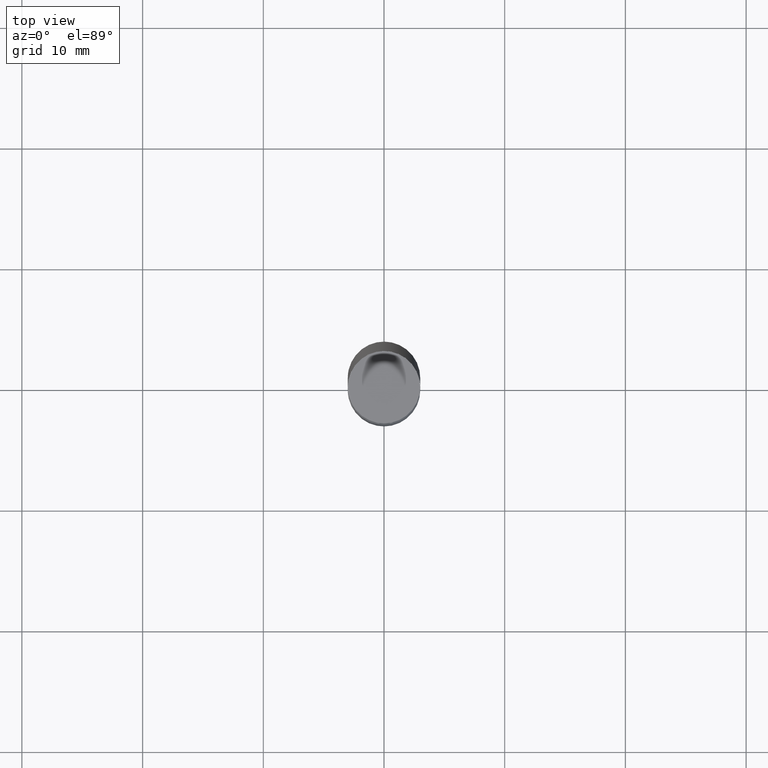
[diagram: clean part render]
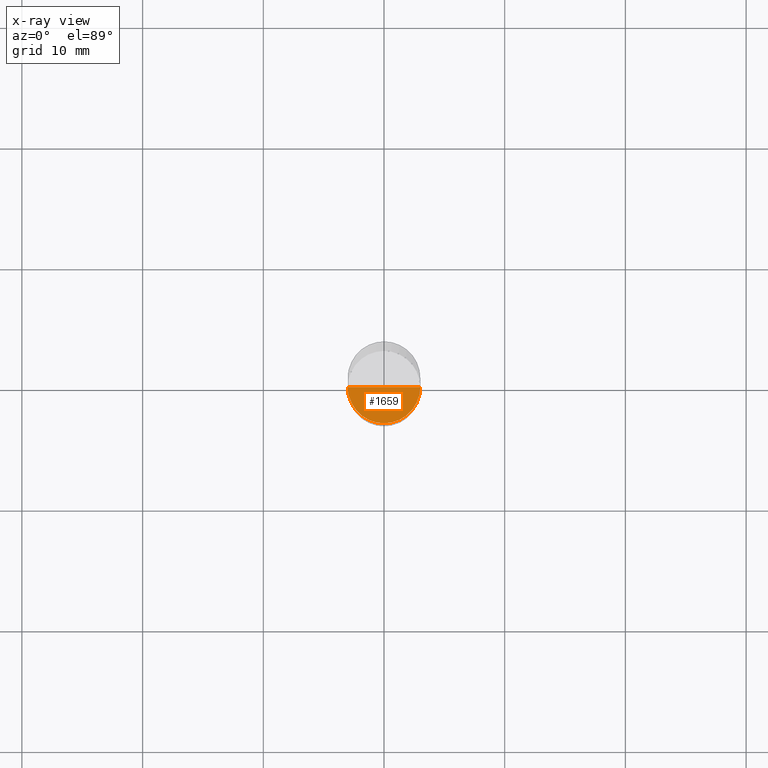
[diagram: x-ray — body ghosted, one internal face saturated and labeled with its STEP entity id]
A machine part, top view, then the same camera in x-ray: the body is ghosted and one INTERNAL B-rep face — a face not visible from any outside direction — is saturated and labeled: STEP entity #1659.
In plain terms, the highlighted face is a freeform B-spline surface patch.
Its self-contained STEP definition (entity closure, byte-faithful):
#1466=CARTESIAN_POINT('',(3.0,0.0,0.0));
#1470=CARTESIAN_POINT('',(-3.0,0.0,0.0));
#1471=CARTESIAN_POINT('',(0.0,0.0,0.0));
#1487=CARTESIAN_POINT('',(-3.0,-3.0,0.0));
#1488=CARTESIAN_POINT('',(0.0,-3.0,0.0));
#1489=CARTESIAN_POINT('',(3.0,-3.0,0.0));
#1644=(
BOUNDED_SURFACE()
B_SPLINE_SURFACE(1,2,(
(#1470,#1487,#1488,#1489,#1466),
(#1471,#1471,#1471,#1471,#1471)
), .UNSPECIFIED.,.F.,.F.,.F.)
B_SPLINE_SURFACE_WITH_KNOTS((2,2),(3,2,3),(
0.0,1.0),(
0.0,0.5,1.0), .UNSPECIFIED.)
GEOMETRIC_REPRESENTATION_ITEM()
RATIONAL_B_SPLINE_SURFACE(((1.0,0.707106781187,1.0,0.707106781187,1.0),
(1.0,0.707106781187,1.0,0.707106781187,1.0)
))
REPRESENTATION_ITEM('')
SURFACE()
);
#1645=(
BOUNDED_CURVE()
B_SPLINE_CURVE(1,(#1471,#1466),.UNSPECIFIED.,.F.,.F.)
B_SPLINE_CURVE_WITH_KNOTS((2,2),
(0.0,1.0),.UNSPECIFIED.)
CURVE()
GEOMETRIC_REPRESENTATION_ITEM()
RATIONAL_B_SPLINE_CURVE((1.0,1.0))
REPRESENTATION_ITEM('')
);
#1646=(
BOUNDED_CURVE()
B_SPLINE_CURVE(2,(#1466,#1489,#1488,#1487,#1470),.UNSPECIFIED.,.F.,.F.)
B_SPLINE_CURVE_WITH_KNOTS((3,2,3),
(0.0,0.5,1.0),.UNSPECIFIED.)
CURVE()
GEOMETRIC_REPRESENTATION_ITEM()
RATIONAL_B_SPLINE_CURVE((1.0,0.707106781187,1.0,0.707106781187,1.0))
REPRESENTATION_ITEM('')
);
#1647=(
BOUNDED_CURVE()
B_SPLINE_CURVE(1,(#1470,#1471),.UNSPECIFIED.,.F.,.F.)
B_SPLINE_CURVE_WITH_KNOTS((2,2),
(0.0,1.0),.UNSPECIFIED.)
CURVE()
GEOMETRIC_REPRESENTATION_ITEM()
RATIONAL_B_SPLINE_CURVE((1.0,1.0))
REPRESENTATION_ITEM('')
);
#1648=VERTEX_POINT('',#1466);
#1649=VERTEX_POINT('',#1470);
#1650=VERTEX_POINT('',#1471);
#1651=EDGE_CURVE('',#1650,#1648,#1645,.T.);
#1652=EDGE_CURVE('',#1648,#1649,#1646,.T.);
#1653=EDGE_CURVE('',#1649,#1650,#1647,.T.);
#1654=ORIENTED_EDGE('',*,*,#1651,.T.);
#1655=ORIENTED_EDGE('',*,*,#1652,.T.);
#1656=ORIENTED_EDGE('',*,*,#1653,.T.);
#1657=EDGE_LOOP('',(#1654,#1655,#1656));
#1658=FACE_OUTER_BOUND('',#1657,.T.);
#1659=ADVANCED_FACE('',(#1658),#1644,.T.);